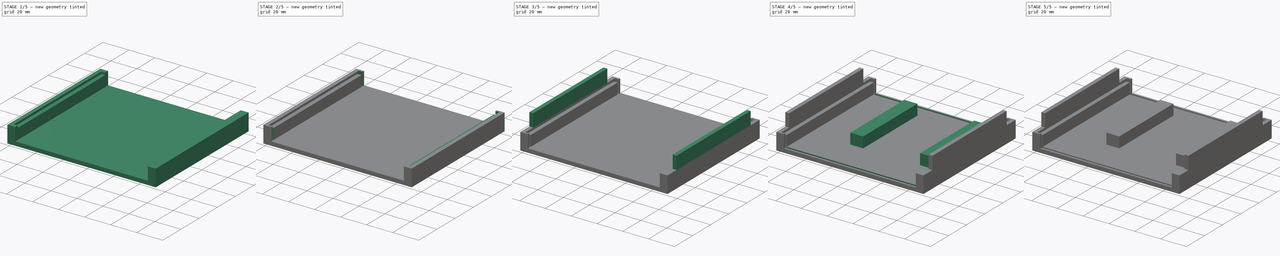
[diagram: build sequence overview — one tinted view per stage of 5, left to right]
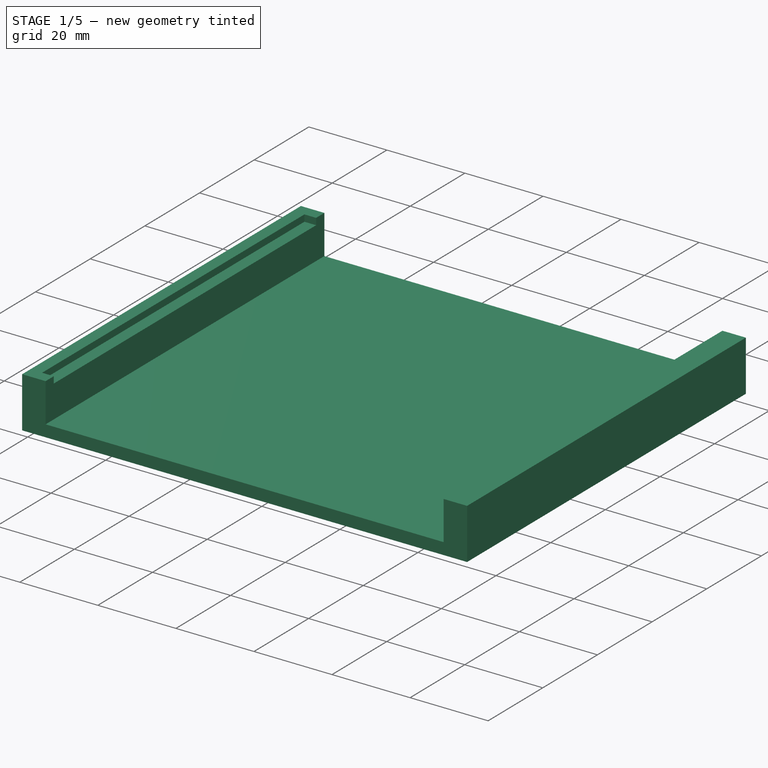
[diagram: stage 1 of 5 — iso view after this stage's code; geometry added in this stage tinted green]
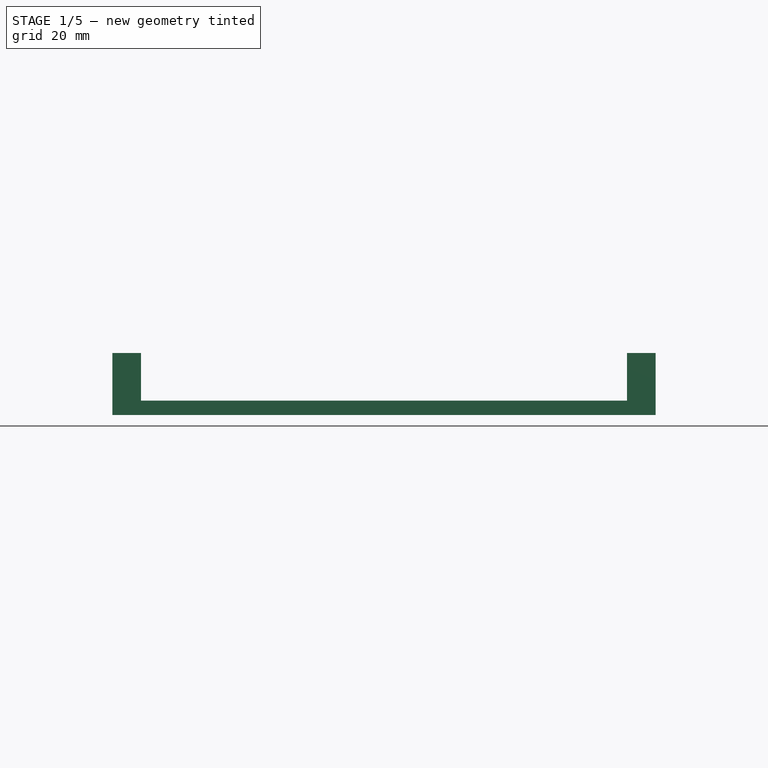
[diagram: stage 1 of 5 — front view after this stage's code; geometry added in this stage tinted green]
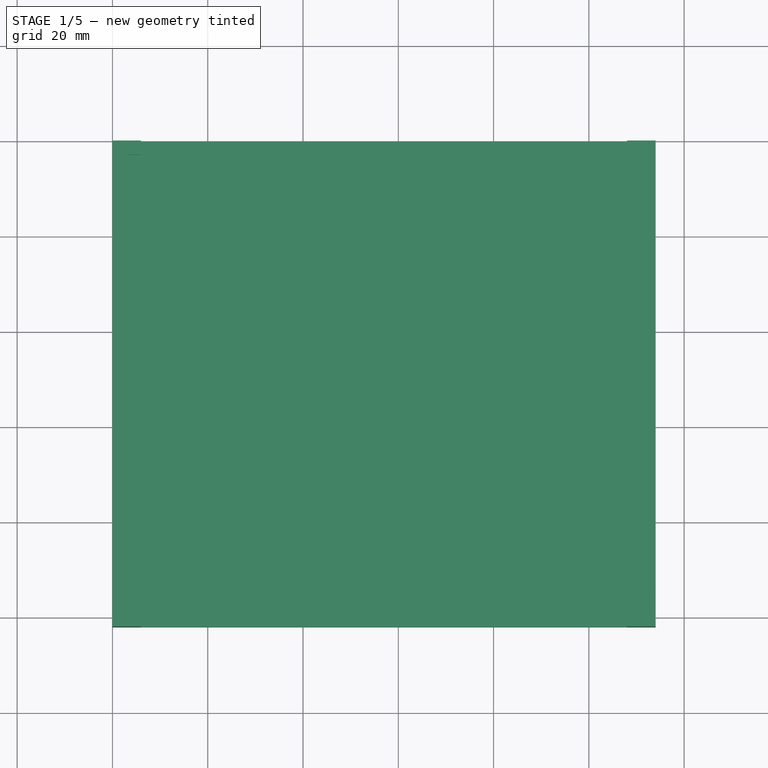
[diagram: stage 1 of 5 — top view after this stage's code; geometry added in this stage tinted green]
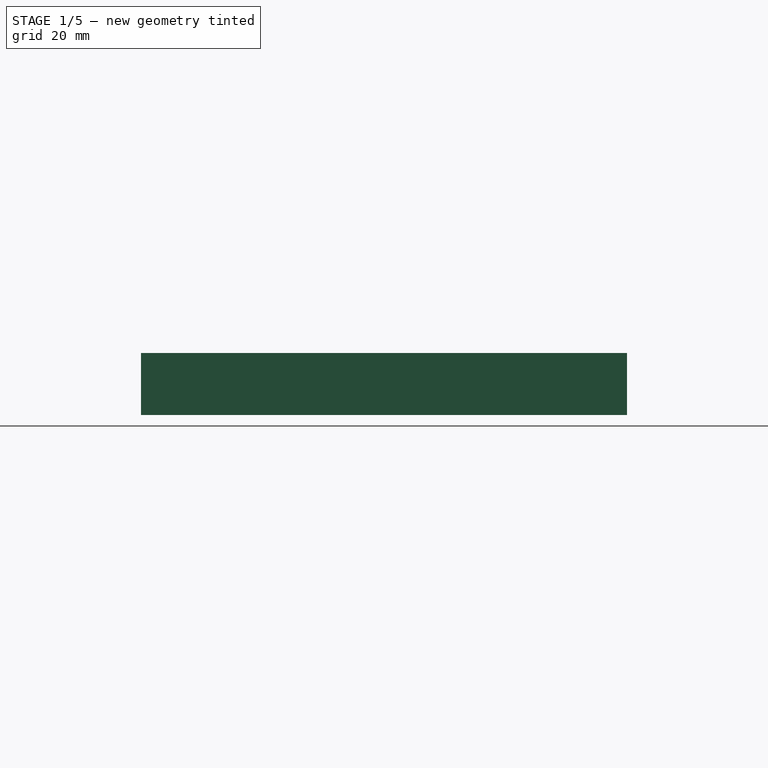
[diagram: stage 1 of 5 — right view after this stage's code; geometry added in this stage tinted green]
FCSTD DOCUMENT  (FreeCAD 0.21R33771 (Git))
Label: PP113_case_bottom
License: All rights reserved
LicenseURL: http://en.wikipedia.org/wiki/All_rights_reserved
objects: Sketcher::SketchObject×20, PartDesign::Pocket×12, PartDesign::Pad×7, PartDesign::Body×1
note: 59 computed .brp shape members not serialized (recipe doc carries the construction recipe); baked Part::Feature solids carry a one-line shape summary decoded from their .brp

FEATURE [Sketcher::SketchObject] Sketch
  FullyConstrained = true
  MapMode = 5
  Support = -> [XY_Plane]
  sketch-geometry (4):
    g0: LineSegment StartX=0 StartY=0 StartZ=0 EndX=114 EndY=0 EndZ=0
    g1: LineSegment StartX=114 StartY=0 StartZ=0 EndX=114 EndY=-102 EndZ=0
    g2: LineSegment StartX=114 StartY=-102 StartZ=0 EndX=0 EndY=-102 EndZ=0
    g3: LineSegment StartX=0 StartY=-102 StartZ=0 EndX=0 EndY=0 EndZ=0
  constraints (11):
    c: Coincident(g0,g1)
    c: Coincident(g1,g2)
    c: Coincident(g2,g3)
    c: Coincident(g3,g0)
    c: Horizontal(g0)
    c: Horizontal(g2)
    c: Vertical(g1)
    c: Vertical(g3)
    c: Distance(g0) = 114
    c: Distance(g1) = 102
    c: Coincident(g0,g-1)
FEATURE [PartDesign::Pad] Pad
  Direction = (0,0,1)
  Length = 3
  Length2 = 10
  Profile = -> Sketch
  ReferenceAxis = -> Sketch [N_Axis]
  Type = 0
FEATURE [Sketcher::SketchObject] Sketch001
  FullyConstrained = true
  MapMode = 5
  Placement = pos=(0,0,3) rot=(0,0,1;0rad)
  Support = -> [Pad]
  sketch-geometry (4):
    g0: LineSegment StartX=0 StartY=0 StartZ=0 EndX=6 EndY=0 EndZ=0
    g1: LineSegment StartX=6 StartY=0 StartZ=0 EndX=6 EndY=-102 EndZ=0
    g2: LineSegment StartX=6 StartY=-102 StartZ=0 EndX=0 EndY=-102 EndZ=0
    g3: LineSegment StartX=0 StartY=-102 StartZ=0 EndX=0 EndY=0 EndZ=0
  constraints (11):
    c: Coincident(g0,g1)
    c: Coincident(g1,g2)
    c: Coincident(g2,g3)
    c: Coincident(g3,g0)
    c: Horizontal(g0)
    c: Horizontal(g2)
    c: Vertical(g1)
    c: Vertical(g3)
    c: Coincident(g0,g-1)
    c: Distance(g0) = 6
    c: Distance(g1) = 102
FEATURE [PartDesign::Pad] Pad001
  BaseFeature = -> Pad
  Direction = (0,0,1)
  Length = 10
  Length2 = 10
  Profile = -> Sketch001
  ReferenceAxis = -> Sketch001 [N_Axis]
  Type = 0
FEATURE [Sketcher::SketchObject] Sketch002
  FullyConstrained = true
  MapMode = 5
  Placement = pos=(0,0,13) rot=(0,0,1;0rad)
  Support = -> [Pad001]
  sketch-geometry (5):
    g0: GeomPoint X=3 Y=-3 Z=0
    g1: LineSegment StartX=3 StartY=-3 StartZ=0 EndX=6 EndY=-3 EndZ=0
    g2: LineSegment StartX=6 StartY=-3 StartZ=0 EndX=6 EndY=-99 EndZ=0
    g3: LineSegment StartX=6 StartY=-99 StartZ=0 EndX=3 EndY=-99 EndZ=0
    g4: LineSegment StartX=3 StartY=-99 StartZ=0 EndX=3 EndY=-3 EndZ=0
  constraints (13):
    c: DistanceX(g0) = 3
    c: DistanceY(g0) = -3
    c: Coincident(g1,g2)
    c: Coincident(g2,g3)
    c: Coincident(g3,g4)
    c: Coincident(g4,g1)
    c: Horizontal(g1)
    c: Horizontal(g3)
    c: Vertical(g2)
    c: Vertical(g4)
    c: Coincident(g1,g0)
    c: Distance(g1) = 3
    c: Distance(g2) = 96
FEATURE [PartDesign::Pocket] Pocket
  BaseFeature = -> Pad001
  Direction = (0,0,-1)
  Length = 1.7
  Length2 = 5
  Profile = -> Sketch002
  ReferenceAxis = -> Sketch002 [N_Axis]
  Type = 0
FEATURE [Sketcher::SketchObject] Sketch003
  FullyConstrained = true
  MapMode = 5
  Placement = pos=(0,0,3) rot=(0,0,1;0rad)
  Support = -> [Pocket]
  sketch-geometry (5):
    g0: GeomPoint X=114 Y=0 Z=0
    g1: LineSegment StartX=114 StartY=0 StartZ=0 EndX=108 EndY=0 EndZ=0
    g2: LineSegment StartX=108 StartY=0 StartZ=0 EndX=108 EndY=-102 EndZ=0
    g3: LineSegment StartX=108 StartY=-102 StartZ=0 EndX=114 EndY=-102 EndZ=0
    g4: LineSegment StartX=114 StartY=-102 StartZ=0 EndX=114 EndY=0 EndZ=0
  constraints (13):
    c: DistanceY(g0) = 0
    c: DistanceX(g0) = 114
    c: Coincident(g1,g2)
    c: Coincident(g2,g3)
    c: Coincident(g3,g4)
    c: Coincident(g4,g1)
    c: Horizontal(g1)
    c: Horizontal(g3)
    c: Vertical(g2)
    c: Vertical(g4)
    c: Coincident(g1,g0)
    c: Distance(g2) = 102
    c: Distance(g1) = 6
FEATURE [PartDesign::Pad] Pad002
  BaseFeature = -> Pocket
  Direction = (0,0,1)
  Length = 10
  Length2 = 10
  Profile = -> Sketch003
  ReferenceAxis = -> Sketch003 [N_Axis]
  Type = 0
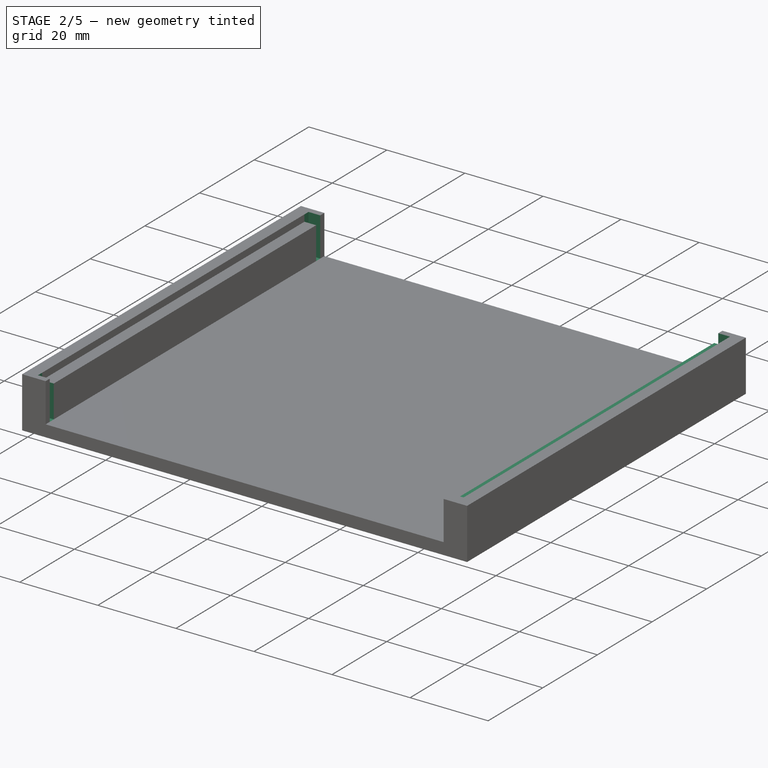
[diagram: stage 2 of 5 — iso view after this stage's code; geometry added in this stage tinted green]
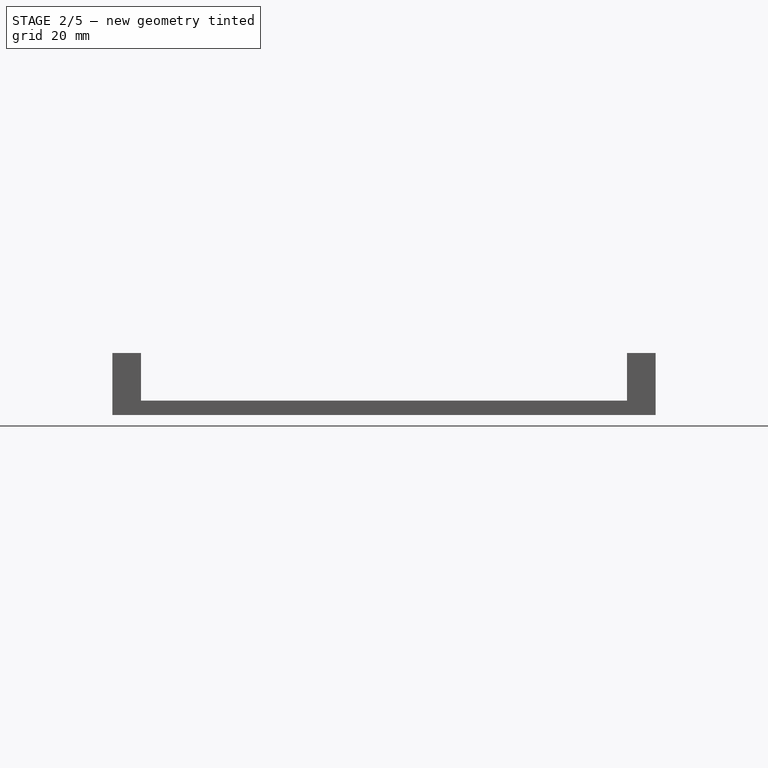
[diagram: stage 2 of 5 — front view after this stage's code; geometry added in this stage tinted green]
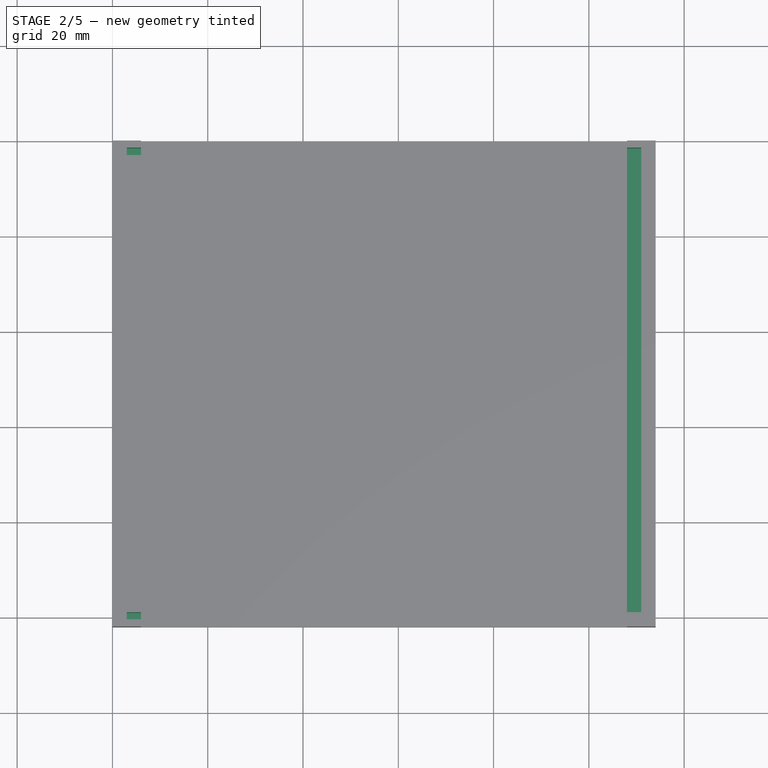
[diagram: stage 2 of 5 — top view after this stage's code; geometry added in this stage tinted green]
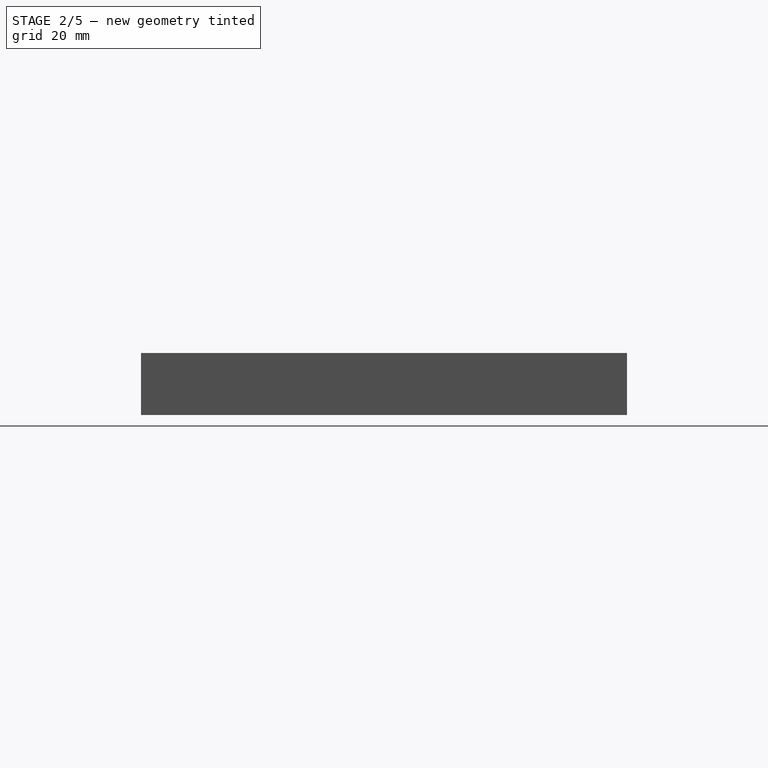
[diagram: stage 2 of 5 — right view after this stage's code; geometry added in this stage tinted green]
FEATURE [Sketcher::SketchObject] Sketch004
  FullyConstrained = true
  MapMode = 5
  Placement = pos=(0,0,13) rot=(0,0,1;0rad)
  Support = -> [Pad002]
  sketch-geometry (5):
    g0: GeomPoint X=111 Y=-3 Z=0
    g1: LineSegment StartX=111 StartY=-3 StartZ=0 EndX=108 EndY=-3 EndZ=0
    g2: LineSegment StartX=108 StartY=-3 StartZ=0 EndX=108 EndY=-99 EndZ=0
    g3: LineSegment StartX=108 StartY=-99 StartZ=0 EndX=111 EndY=-99 EndZ=0
    g4: LineSegment StartX=111 StartY=-99 StartZ=0 EndX=111 EndY=-3 EndZ=0
  constraints (13):
    c: DistanceX(g0) = 111
    c: DistanceY(g0) = -3
    c: Coincident(g1,g2)
    c: Coincident(g2,g3)
    c: Coincident(g3,g4)
    c: Coincident(g4,g1)
    c: Horizontal(g1)
    c: Horizontal(g3)
    c: Vertical(g2)
    c: Vertical(g4)
    c: Coincident(g1,g0)
    c: Distance(g1) = 3
    c: Distance(g2) = 96
FEATURE [PartDesign::Pocket] Pocket001
  BaseFeature = -> Pad002
  Direction = (0,0,-1)
  Length = 1.7
  Length2 = 5
  Profile = -> Sketch004
  ReferenceAxis = -> Sketch004 [N_Axis]
  Type = 0
FEATURE [Sketcher::SketchObject] Sketch005
  FullyConstrained = true
  MapMode = 5
  Placement = pos=(6,0,0) rot=(0.57735,0.57735,0.57735;2.0944rad)
  Support = -> [Pocket001]
FEATURE [Sketcher::SketchObject] Sketch006
  FullyConstrained = true
  MapMode = 5
  Placement = pos=(6,0,0) rot=(0.57735,0.57735,0.57735;2.0944rad)
  Support = -> [Pocket001]
  sketch-geometry (5):
    g0: GeomPoint X=-3 Y=3 Z=0
    g1: LineSegment StartX=-3 StartY=3 StartZ=0 EndX=-1.5 EndY=3 EndZ=0
    g2: LineSegment StartX=-1.5 StartY=3 StartZ=0 EndX=-1.5 EndY=13 EndZ=0
    g3: LineSegment StartX=-1.5 StartY=13 StartZ=0 EndX=-3 EndY=13 EndZ=0
    g4: LineSegment StartX=-3 StartY=13 StartZ=0 EndX=-3 EndY=3 EndZ=0
  constraints (13):
    c: DistanceX(g0) = -3
    c: DistanceY(g0) = 3
    c: Coincident(g1,g2)
    c: Coincident(g2,g3)
    c: Coincident(g3,g4)
    c: Coincident(g4,g1)
    c: Horizontal(g1)
    c: Horizontal(g3)
    c: Vertical(g2)
    c: Vertical(g4)
    c: Coincident(g1,g0)
    c: Distance(g2) = 10
    c: Distance(g3) = 1.5
FEATURE [PartDesign::Pocket] Pocket002
  BaseFeature = -> Pocket001
  Direction = (-1,0,0)
  Length = 3
  Length2 = 5
  Profile = -> Sketch006
  ReferenceAxis = -> Sketch006 [N_Axis]
  Type = 0
FEATURE [Sketcher::SketchObject] Sketch007
  FullyConstrained = true
  MapMode = 5
  Placement = pos=(6,0,0) rot=(0.57735,0.57735,0.57735;2.0944rad)
  Support = -> [Pocket002]
  sketch-geometry (5):
    g0: GeomPoint X=-99 Y=3 Z=0
    g1: LineSegment StartX=-99 StartY=3 StartZ=0 EndX=-100.5 EndY=3 EndZ=0
    g2: LineSegment StartX=-100.5 StartY=3 StartZ=0 EndX=-100.5 EndY=13 EndZ=0
    g3: LineSegment StartX=-100.5 StartY=13 StartZ=0 EndX=-99 EndY=13 EndZ=0
    g4: LineSegment StartX=-99 StartY=13 StartZ=0 EndX=-99 EndY=3 EndZ=0
  constraints (13):
    c: DistanceY(g0) = 3
    c: DistanceX(g0) = -99
    c: Coincident(g1,g2)
    c: Coincident(g2,g3)
    c: Coincident(g3,g4)
    c: Coincident(g4,g1)
    c: Horizontal(g1)
    c: Horizontal(g3)
    c: Vertical(g2)
    c: Vertical(g4)
    c: Coincident(g1,g0)
    c: DistanceY(g4,g4) = 10
    c: Distance(g3) = 1.5
FEATURE [PartDesign::Pocket] Pocket003
  BaseFeature = -> Pocket002
  Direction = (-1,0,0)
  Length = 3
  Length2 = 5
  Profile = -> Sketch007
  ReferenceAxis = -> Sketch007 [N_Axis]
  Type = 0
FEATURE [Sketcher::SketchObject] Sketch008
  FullyConstrained = true
  MapMode = 5
  Placement = pos=(108,0,0) rot=(0.57735,-0.57735,-0.57735;2.0944rad)
  Support = -> [Pocket003]
  sketch-geometry (5):
    g0: GeomPoint X=3 Y=3 Z=0
    g1: LineSegment StartX=3 StartY=3 StartZ=0 EndX=1.5 EndY=3 EndZ=0
    g2: LineSegment StartX=1.5 StartY=3 StartZ=0 EndX=1.5 EndY=13 EndZ=0
    g3: LineSegment StartX=1.5 StartY=13 StartZ=0 EndX=3 EndY=13 EndZ=0
    g4: LineSegment StartX=3 StartY=13 StartZ=0 EndX=3 EndY=3 EndZ=0
  constraints (13):
    c: DistanceY(g0) = 3
    c: DistanceX(g0) = 3
    c: Coincident(g1,g2)
    c: Coincident(g2,g3)
    c: Coincident(g3,g4)
    c: Coincident(g4,g1)
    c: Horizontal(g1)
    c: Horizontal(g3)
    c: Vertical(g2)
    c: Vertical(g4)
    c: Coincident(g1,g0)
    c: Distance(g4) = 10
    c: Distance(g3) = 1.5
FEATURE [PartDesign::Pocket] Pocket004
  BaseFeature = -> Pocket003
  Direction = (1,0,0)
  Length = 3
  Length2 = 5
  Profile = -> Sketch008
  ReferenceAxis = -> Sketch008 [N_Axis]
  Type = 0
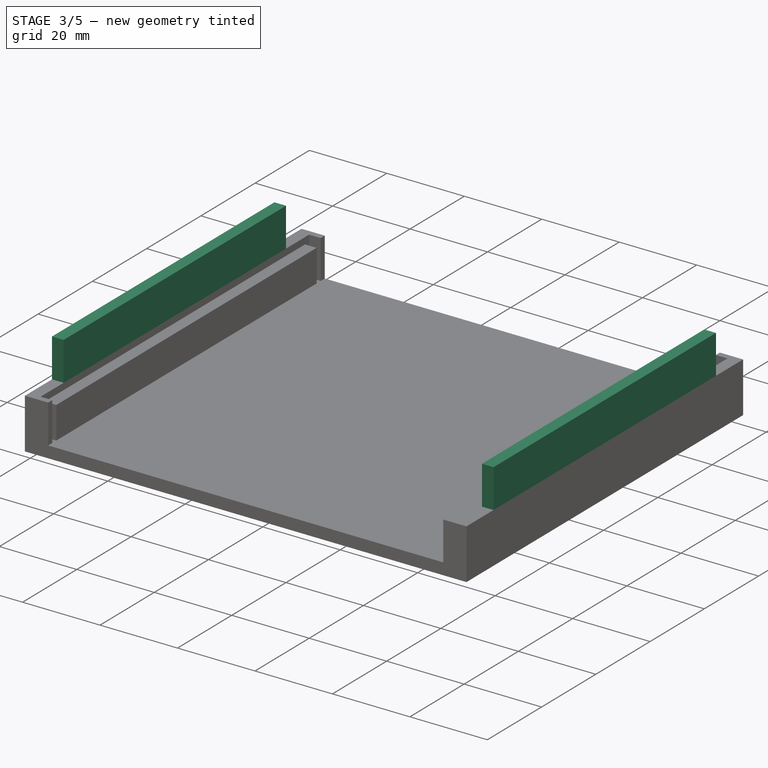
[diagram: stage 3 of 5 — iso view after this stage's code; geometry added in this stage tinted green]
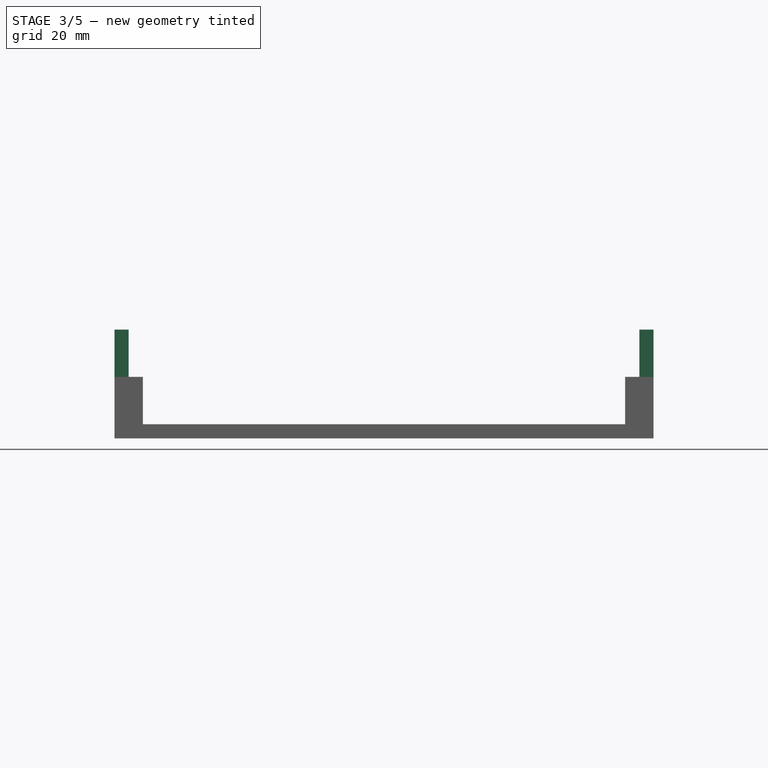
[diagram: stage 3 of 5 — front view after this stage's code; geometry added in this stage tinted green]
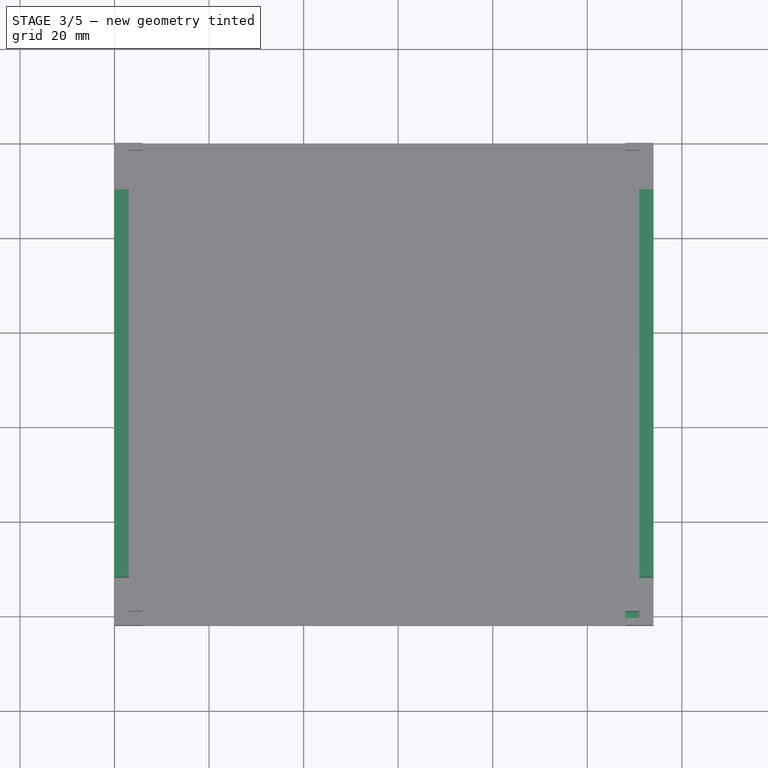
[diagram: stage 3 of 5 — top view after this stage's code; geometry added in this stage tinted green]
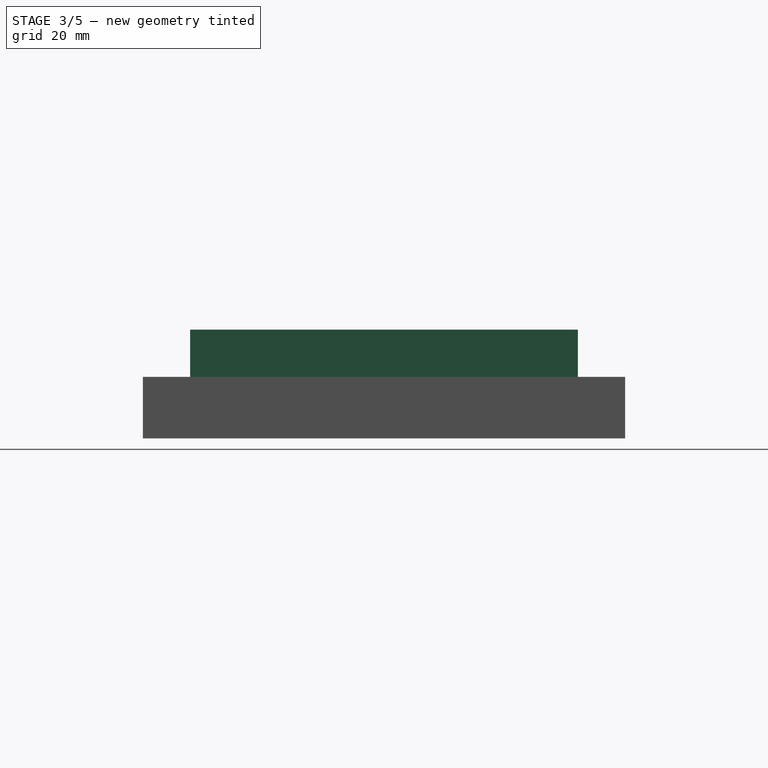
[diagram: stage 3 of 5 — right view after this stage's code; geometry added in this stage tinted green]
FEATURE [Sketcher::SketchObject] Sketch009
  FullyConstrained = true
  MapMode = 5
  Placement = pos=(108,0,0) rot=(0.57735,-0.57735,-0.57735;2.0944rad)
  Support = -> [Pocket004]
  sketch-geometry (5):
    g0: GeomPoint X=99 Y=3 Z=0
    g1: LineSegment StartX=99 StartY=3 StartZ=0 EndX=100.5 EndY=3 EndZ=0
    g2: LineSegment StartX=100.5 StartY=3 StartZ=0 EndX=100.5 EndY=13 EndZ=0
    g3: LineSegment StartX=100.5 StartY=13 StartZ=0 EndX=99 EndY=13 EndZ=0
    g4: LineSegment StartX=99 StartY=13 StartZ=0 EndX=99 EndY=3 EndZ=0
  constraints (13):
    c: DistanceY(g0) = 3
    c: DistanceX(g0) = 99
    c: Coincident(g1,g2)
    c: Coincident(g2,g3)
    c: Coincident(g3,g4)
    c: Coincident(g4,g1)
    c: Horizontal(g1)
    c: Horizontal(g3)
    c: Vertical(g2)
    c: Vertical(g4)
    c: Coincident(g1,g0)
    c: Distance(g2) = 10
    c: Distance(g1) = 1.5
FEATURE [PartDesign::Pocket] Pocket005
  BaseFeature = -> Pocket004
  Direction = (1,0,0)
  Length = 3
  Length2 = 5
  Profile = -> Sketch009
  ReferenceAxis = -> Sketch009 [N_Axis]
  Type = 0
FEATURE [Sketcher::SketchObject] Sketch010
  FullyConstrained = true
  MapMode = 5
  Placement = pos=(0,0,13) rot=(0,0,1;0rad)
  Support = -> [Pocket005]
  sketch-geometry (5):
    g0: GeomPoint X=0 Y=-10 Z=0
    g1: LineSegment StartX=0 StartY=-10 StartZ=0 EndX=3 EndY=-10 EndZ=0
    g2: LineSegment StartX=3 StartY=-10 StartZ=0 EndX=3 EndY=-92 EndZ=0
    g3: LineSegment StartX=3 StartY=-92 StartZ=0 EndX=0 EndY=-92 EndZ=0
    g4: LineSegment StartX=0 StartY=-92 StartZ=0 EndX=0 EndY=-10 EndZ=0
  constraints (13):
    c: DistanceX(g0) = 0
    c: DistanceY(g0) = -10
    c: Coincident(g1,g2)
    c: Coincident(g2,g3)
    c: Coincident(g3,g4)
    c: Coincident(g4,g1)
    c: Horizontal(g1)
    c: Horizontal(g3)
    c: Vertical(g2)
    c: Vertical(g4)
    c: Coincident(g1,g0)
    c: Distance(g3) = 3
    c: Distance(g2) = 82
FEATURE [PartDesign::Pad] Pad003
  BaseFeature = -> Pocket005
  Direction = (0,0,1)
  Length = 10
  Length2 = 10
  Profile = -> Sketch010
  ReferenceAxis = -> Sketch010 [N_Axis]
  Type = 0
FEATURE [Sketcher::SketchObject] Sketch011
  FullyConstrained = true
  MapMode = 5
  Placement = pos=(0,0,13) rot=(0,0,1;0rad)
  Support = -> [Pad003]
  sketch-geometry (5):
    g0: GeomPoint X=114 Y=-10 Z=0
    g1: LineSegment StartX=114 StartY=-10 StartZ=0 EndX=111 EndY=-10 EndZ=0
    g2: LineSegment StartX=111 StartY=-10 StartZ=0 EndX=111 EndY=-92 EndZ=0
    g3: LineSegment StartX=111 StartY=-92 StartZ=0 EndX=114 EndY=-92 EndZ=0
    g4: LineSegment StartX=114 StartY=-92 StartZ=0 EndX=114 EndY=-10 EndZ=0
  constraints (13):
    c: DistanceX(g0) = 114
    c: DistanceY(g0) = -10
    c: Coincident(g1,g2)
    c: Coincident(g2,g3)
    c: Coincident(g3,g4)
    c: Coincident(g4,g1)
    c: Horizontal(g1)
    c: Horizontal(g3)
    c: Vertical(g2)
    c: Vertical(g4)
    c: Coincident(g1,g0)
    c: Distance(g3) = 3
    c: Distance(g2) = 82
FEATURE [PartDesign::Pad] Pad004
  BaseFeature = -> Pad003
  Direction = (0,0,1)
  Length = 10
  Length2 = 10
  Profile = -> Sketch011
  ReferenceAxis = -> Sketch011 [N_Axis]
  Type = 0
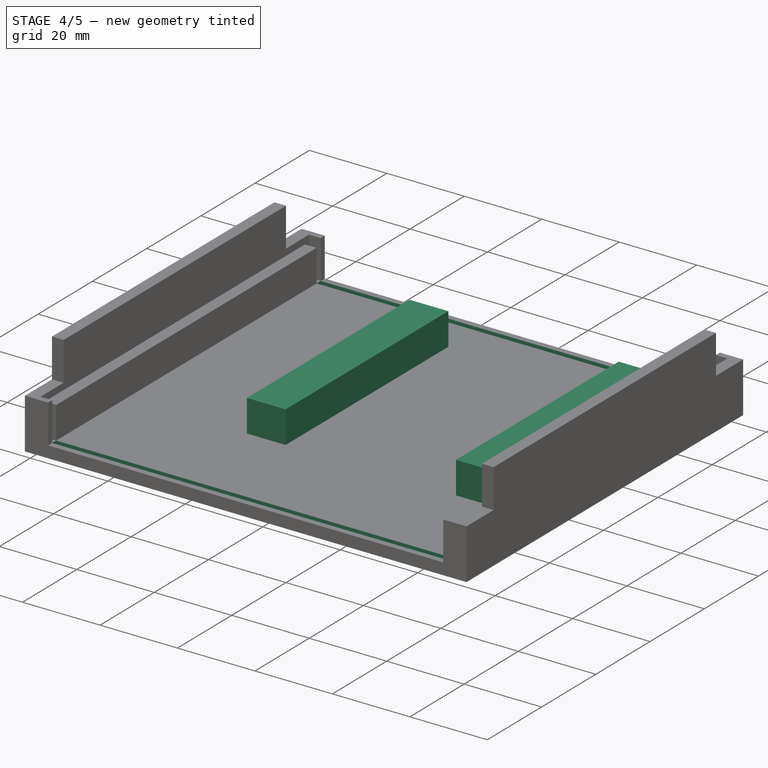
[diagram: stage 4 of 5 — iso view after this stage's code; geometry added in this stage tinted green]
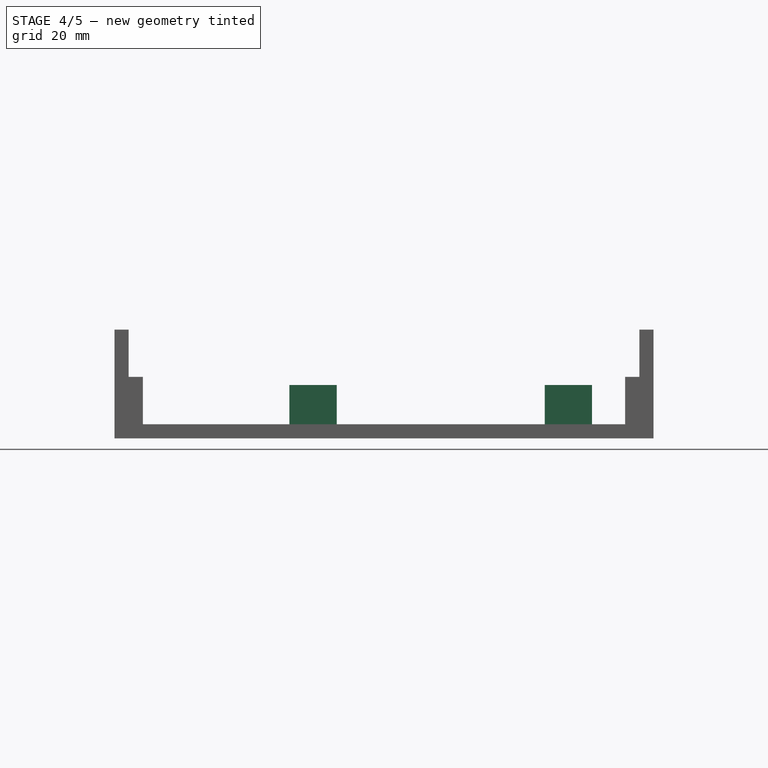
[diagram: stage 4 of 5 — front view after this stage's code; geometry added in this stage tinted green]
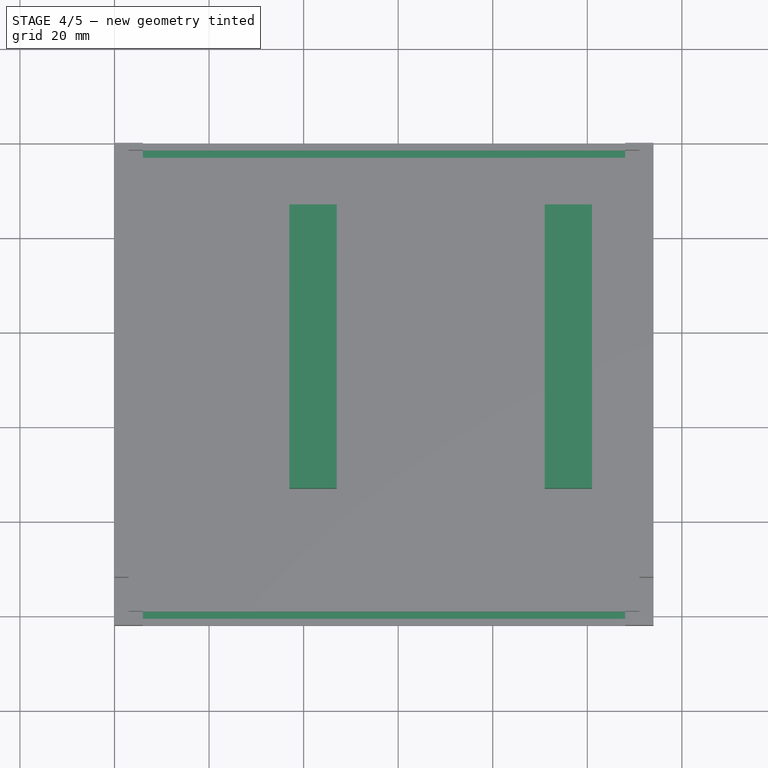
[diagram: stage 4 of 5 — top view after this stage's code; geometry added in this stage tinted green]
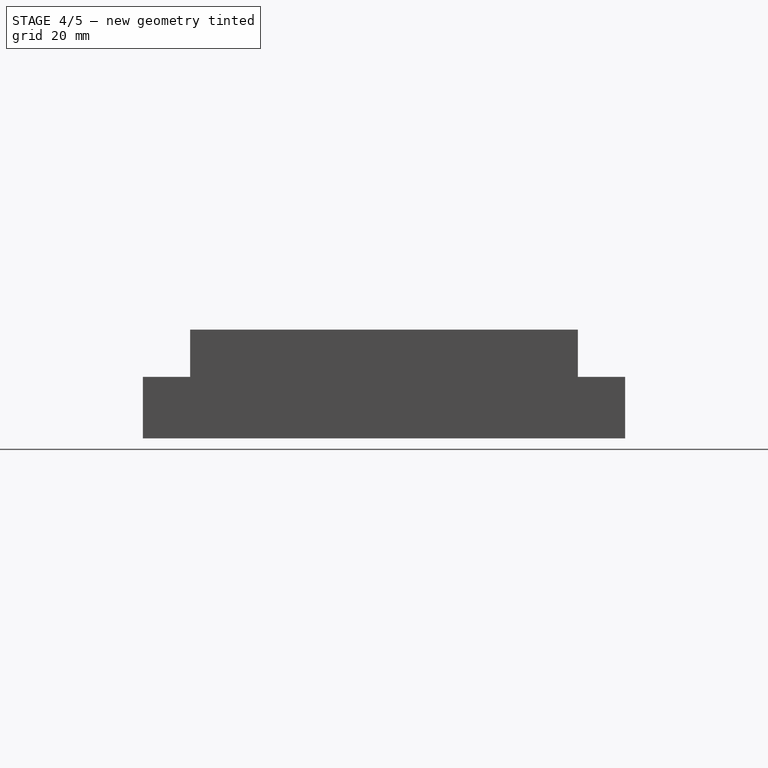
[diagram: stage 4 of 5 — right view after this stage's code; geometry added in this stage tinted green]
FEATURE [Sketcher::SketchObject] Sketch012
  FullyConstrained = true
  MapMode = 5
  Placement = pos=(0,0,3) rot=(0,0,1;0rad)
  Support = -> [Pad004]
  sketch-geometry (5):
    g0: GeomPoint X=101 Y=-13 Z=0
    g1: LineSegment StartX=101 StartY=-13 StartZ=0 EndX=91 EndY=-13 EndZ=0
    g2: LineSegment StartX=91 StartY=-13 StartZ=0 EndX=91 EndY=-73 EndZ=0
    g3: LineSegment StartX=91 StartY=-73 StartZ=0 EndX=101 EndY=-73 EndZ=0
    g4: LineSegment StartX=101 StartY=-73 StartZ=0 EndX=101 EndY=-13 EndZ=0
  constraints (13):
    c: DistanceX(g0) = 101
    c: DistanceY(g0) = -13
    c: Coincident(g1,g2)
    c: Coincident(g2,g3)
    c: Coincident(g3,g4)
    c: Coincident(g4,g1)
    c: Horizontal(g1)
    c: Horizontal(g3)
    c: Vertical(g2)
    c: Vertical(g4)
    c: Coincident(g1,g0)
    c: Distance(g1) = 10
    c: Distance(g2) = 60
FEATURE [PartDesign::Pad] Pad005
  BaseFeature = -> Pad004
  Direction = (0,0,1)
  Length = 8.3
  Length2 = 10
  Profile = -> Sketch012
  ReferenceAxis = -> Sketch012 [N_Axis]
  Type = 0
FEATURE [Sketcher::SketchObject] Sketch013
  FullyConstrained = true
  MapMode = 5
  Placement = pos=(0,0,3) rot=(0,0,1;0rad)
  Support = -> [Pad005]
  sketch-geometry (5):
    g0: GeomPoint X=47 Y=-13 Z=0
    g1: LineSegment StartX=47 StartY=-13 StartZ=0 EndX=37 EndY=-13 EndZ=0
    g2: LineSegment StartX=37 StartY=-13 StartZ=0 EndX=37 EndY=-73 EndZ=0
    g3: LineSegment StartX=37 StartY=-73 StartZ=0 EndX=47 EndY=-73 EndZ=0
    g4: LineSegment StartX=47 StartY=-73 StartZ=0 EndX=47 EndY=-13 EndZ=0
  constraints (13):
    c: DistanceY(g0) = -13
    c: DistanceX(g0) = 47
    c: Coincident(g1,g2)
    c: Coincident(g2,g3)
    c: Coincident(g3,g4)
    c: Coincident(g4,g1)
    c: Horizontal(g1)
    c: Horizontal(g3)
    c: Vertical(g2)
    c: Vertical(g4)
    c: Coincident(g1,g0)
    c: Distance(g3) = 10
    c: Distance(g2) = 60
FEATURE [PartDesign::Pad] Pad006
  BaseFeature = -> Pad005
  Direction = (0,0,1)
  Length = 8.3
  Length2 = 10
  Profile = -> Sketch013
  ReferenceAxis = -> Sketch013 [N_Axis]
  Type = 0
FEATURE [Sketcher::SketchObject] Sketch014
  FullyConstrained = true
  MapMode = 5
  Placement = pos=(0,0,3) rot=(0,0,1;0rad)
  Support = -> [Pad006]
  sketch-geometry (5):
    g0: GeomPoint X=6 Y=-99 Z=0
    g1: LineSegment StartX=6 StartY=-99 StartZ=0 EndX=108 EndY=-99 EndZ=0
    g2: LineSegment StartX=108 StartY=-99 StartZ=0 EndX=108 EndY=-100.5 EndZ=0
    g3: LineSegment StartX=108 StartY=-100.5 StartZ=0 EndX=6 EndY=-100.5 EndZ=0
    g4: LineSegment StartX=6 StartY=-100.5 StartZ=0 EndX=6 EndY=-99 EndZ=0
  constraints (13):
    c: DistanceY(g0) = -99
    c: DistanceX(g0) = 6
    c: Coincident(g1,g2)
    c: Coincident(g2,g3)
    c: Coincident(g3,g4)
    c: Coincident(g4,g1)
    c: Horizontal(g1)
    c: Horizontal(g3)
    c: Vertical(g2)
    c: Vertical(g4)
    c: Coincident(g1,g0)
    c: Distance(g2) = 1.5
    c: Distance(g3) = 102
FEATURE [PartDesign::Pocket] Pocket006
  BaseFeature = -> Pad006
  Direction = (0,0,-1)
  Length = 1.5
  Length2 = 5
  Profile = -> Sketch014
  ReferenceAxis = -> Sketch014 [N_Axis]
  Type = 0
FEATURE [Sketcher::SketchObject] Sketch015
  FullyConstrained = true
  MapMode = 5
  Placement = pos=(0,0,3) rot=(0,0,1;0rad)
  Support = -> [Pocket006]
  sketch-geometry (5):
    g0: GeomPoint X=6 Y=-3 Z=0
    g1: LineSegment StartX=6 StartY=-3 StartZ=0 EndX=108 EndY=-3 EndZ=0
    g2: LineSegment StartX=108 StartY=-3 StartZ=0 EndX=108 EndY=-1.5 EndZ=0
    g3: LineSegment StartX=108 StartY=-1.5 StartZ=0 EndX=6 EndY=-1.5 EndZ=0
    g4: LineSegment StartX=6 StartY=-1.5 StartZ=0 EndX=6 EndY=-3 EndZ=0
  constraints (13):
    c: DistanceX(g0) = 6
    c: DistanceY(g0) = -3
    c: Coincident(g1,g2)
    c: Coincident(g2,g3)
    c: Coincident(g3,g4)
    c: Coincident(g4,g1)
    c: Horizontal(g1)
    c: Horizontal(g3)
    c: Vertical(g2)
    c: Vertical(g4)
    c: Coincident(g1,g0)
    c: Distance(g3) = 102
    c: Distance(g2) = 1.5
FEATURE [PartDesign::Pocket] Pocket007
  BaseFeature = -> Pocket006
  Direction = (0,0,-1)
  Length = 1.5
  Length2 = 5
  Profile = -> Sketch015
  ReferenceAxis = -> Sketch015 [N_Axis]
  Type = 0
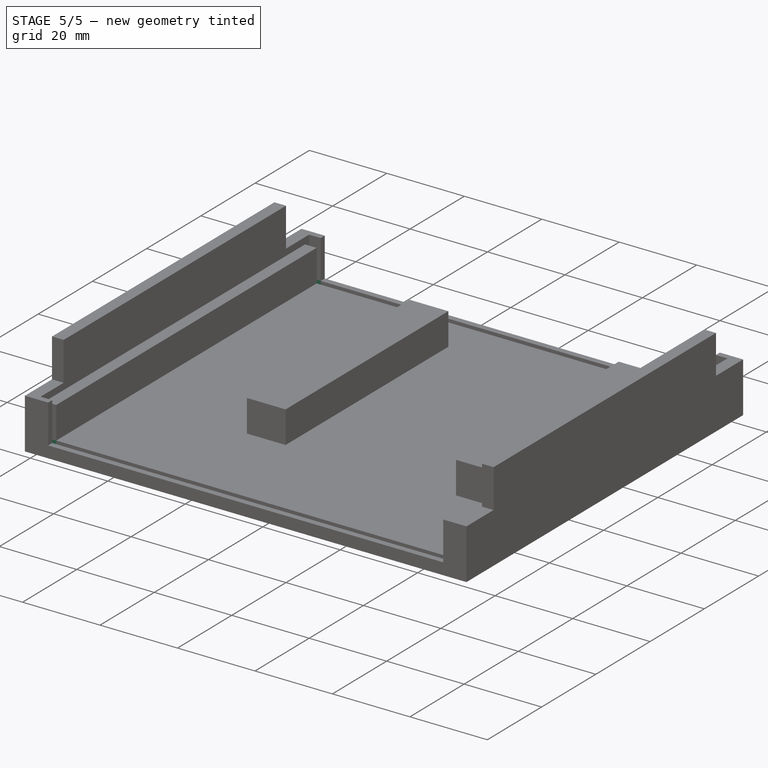
[diagram: stage 5 of 5 — iso view after this stage's code; geometry added in this stage tinted green]
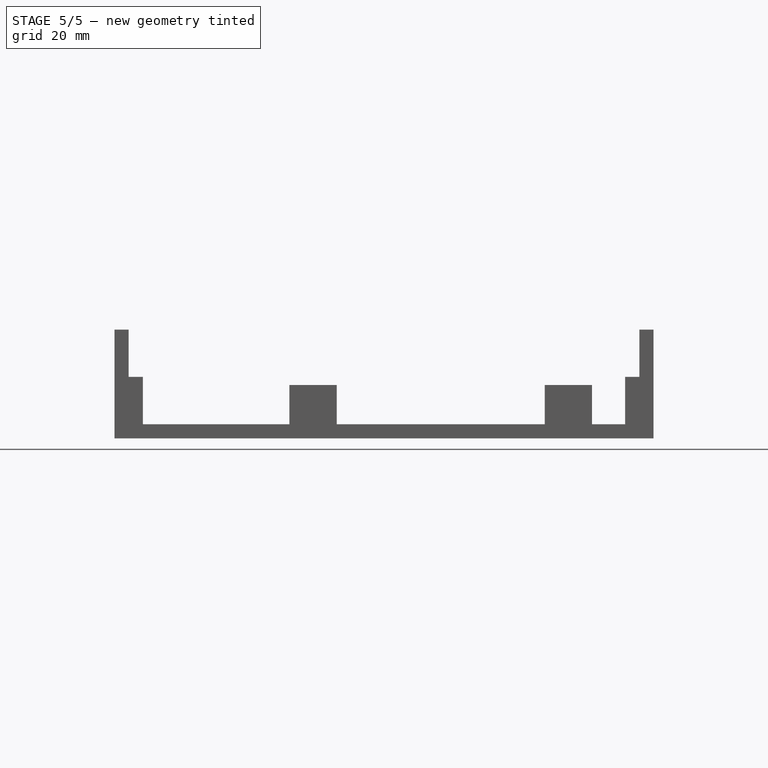
[diagram: stage 5 of 5 — front view after this stage's code; geometry added in this stage tinted green]
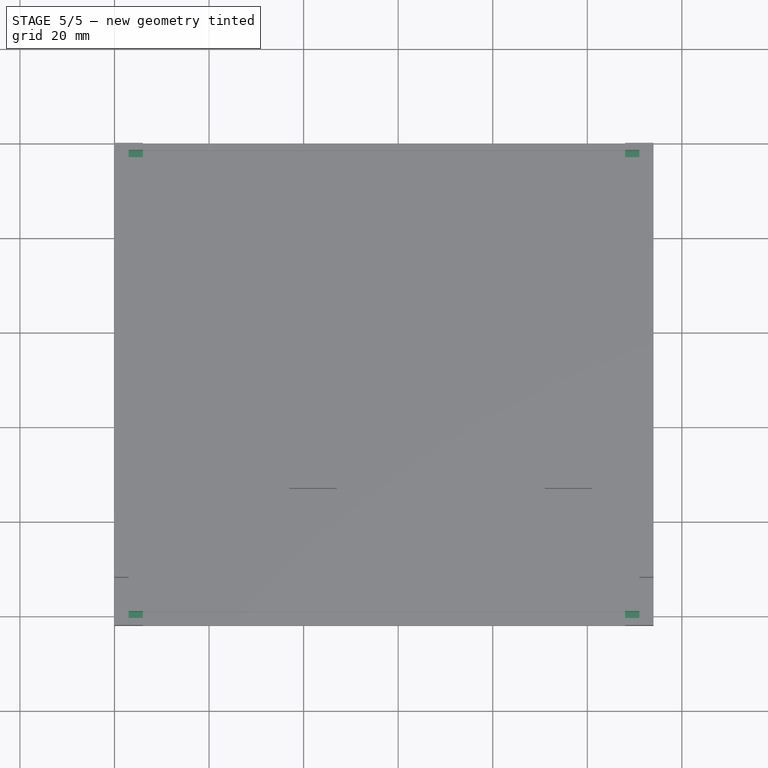
[diagram: stage 5 of 5 — top view after this stage's code; geometry added in this stage tinted green]
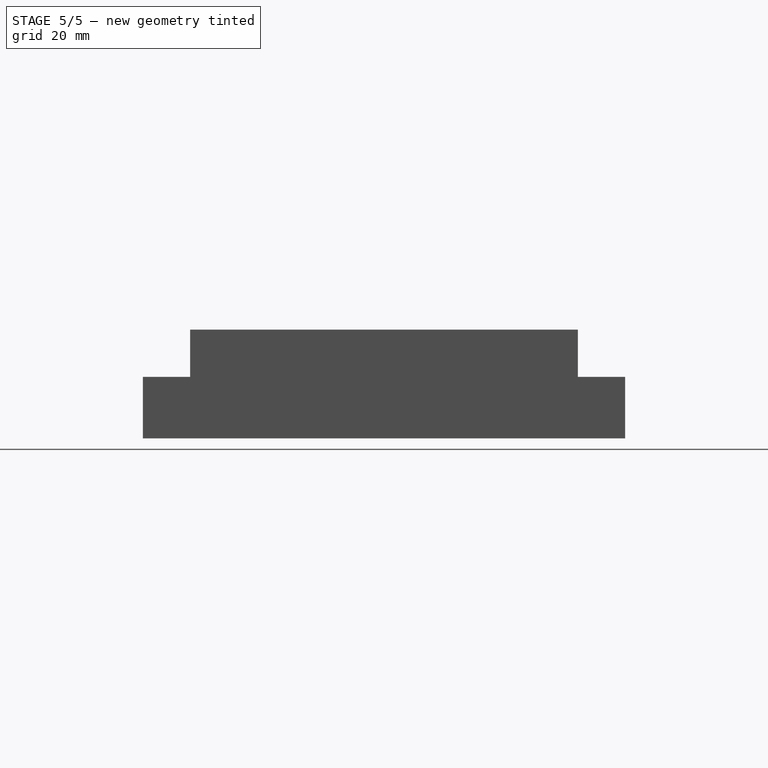
[diagram: stage 5 of 5 — right view after this stage's code; geometry added in this stage tinted green]
FEATURE [Sketcher::SketchObject] Sketch016
  FullyConstrained = true
  MapMode = 5
  Placement = pos=(0,0,3) rot=(0,0,1;0rad)
  Support = -> [Pocket007]
  sketch-geometry (5):
    g0: GeomPoint X=3 Y=-99 Z=0
    g1: LineSegment StartX=3 StartY=-99 StartZ=0 EndX=6 EndY=-99 EndZ=0
    g2: LineSegment StartX=6 StartY=-99 StartZ=0 EndX=6 EndY=-100.5 EndZ=0
    g3: LineSegment StartX=6 StartY=-100.5 StartZ=0 EndX=3 EndY=-100.5 EndZ=0
    g4: LineSegment StartX=3 StartY=-100.5 StartZ=0 EndX=3 EndY=-99 EndZ=0
  constraints (13):
    c: DistanceX(g0) = 3
    c: DistanceY(g0) = -99
    c: Coincident(g1,g2)
    c: Coincident(g2,g3)
    c: Coincident(g3,g4)
    c: Coincident(g4,g1)
    c: Horizontal(g1)
    c: Horizontal(g3)
    c: Vertical(g2)
    c: Vertical(g4)
    c: Coincident(g1,g0)
    c: Distance(g3) = 3
    c: Distance(g2) = 1.5
FEATURE [PartDesign::Pocket] Pocket008
  BaseFeature = -> Pocket007
  Direction = (0,0,-1)
  Length = 1.5
  Length2 = 5
  Profile = -> Sketch016
  ReferenceAxis = -> Sketch016 [N_Axis]
  Type = 0
FEATURE [Sketcher::SketchObject] Sketch017
  FullyConstrained = true
  MapMode = 5
  Placement = pos=(0,0,3) rot=(0,0,1;0rad)
  Support = -> [Pocket008]
  sketch-geometry (5):
    g0: GeomPoint X=3 Y=-1.5 Z=0
    g1: LineSegment StartX=3 StartY=-1.5 StartZ=0 EndX=6 EndY=-1.5 EndZ=0
    g2: LineSegment StartX=6 StartY=-1.5 StartZ=0 EndX=6 EndY=-3 EndZ=0
    g3: LineSegment StartX=6 StartY=-3 StartZ=0 EndX=3 EndY=-3 EndZ=0
    g4: LineSegment StartX=3 StartY=-3 StartZ=0 EndX=3 EndY=-1.5 EndZ=0
  constraints (13):
    c: DistanceX(g0) = 3
    c: DistanceY(g0) = -1.5
    c: Coincident(g1,g2)
    c: Coincident(g2,g3)
    c: Coincident(g3,g4)
    c: Coincident(g4,g1)
    c: Horizontal(g1)
    c: Horizontal(g3)
    c: Vertical(g2)
    c: Vertical(g4)
    c: Coincident(g1,g0)
    c: Distance(g3) = 3
    c: DistanceY(g2,g2) = 1.5
FEATURE [PartDesign::Pocket] Pocket009
  BaseFeature = -> Pocket008
  Direction = (0,0,-1)
  Length = 1.5
  Length2 = 5
  Profile = -> Sketch017
  ReferenceAxis = -> Sketch017 [N_Axis]
  Type = 0
FEATURE [Sketcher::SketchObject] Sketch018
  FullyConstrained = true
  MapMode = 5
  Placement = pos=(0,0,3) rot=(0,0,1;0rad)
  Support = -> [Pocket009]
  sketch-geometry (5):
    g0: GeomPoint X=111 Y=-99 Z=0
    g1: LineSegment StartX=111 StartY=-99 StartZ=0 EndX=108 EndY=-99 EndZ=0
    g2: LineSegment StartX=108 StartY=-99 StartZ=0 EndX=108 EndY=-100.5 EndZ=0
    g3: LineSegment StartX=108 StartY=-100.5 StartZ=0 EndX=111 EndY=-100.5 EndZ=0
    g4: LineSegment StartX=111 StartY=-100.5 StartZ=0 EndX=111 EndY=-99 EndZ=0
  constraints (13):
    c: DistanceY(g0) = -99
    c: DistanceX(g0) = 111
    c: Coincident(g1,g2)
    c: Coincident(g2,g3)
    c: Coincident(g3,g4)
    c: Coincident(g4,g1)
    c: Horizontal(g1)
    c: Horizontal(g3)
    c: Vertical(g2)
    c: Vertical(g4)
    c: Coincident(g1,g0)
    c: Distance(g3) = 3
    c: Distance(g4) = 1.5
FEATURE [PartDesign::Pocket] Pocket010
  BaseFeature = -> Pocket009
  Direction = (0,0,-1)
  Length = 1.5
  Length2 = 5
  Profile = -> Sketch018
  ReferenceAxis = -> Sketch018 [N_Axis]
  Type = 0
FEATURE [Sketcher::SketchObject] Sketch019
  FullyConstrained = true
  MapMode = 5
  Placement = pos=(0,0,3) rot=(0,0,1;0rad)
  Support = -> [Pocket010]
  sketch-geometry (5):
    g0: GeomPoint X=111 Y=-3 Z=0
    g1: LineSegment StartX=111 StartY=-3 StartZ=0 EndX=108 EndY=-3 EndZ=0
    g2: LineSegment StartX=108 StartY=-3 StartZ=0 EndX=108 EndY=-1.5 EndZ=0
    g3: LineSegment StartX=108 StartY=-1.5 StartZ=0 EndX=111 EndY=-1.5 EndZ=0
    g4: LineSegment StartX=111 StartY=-1.5 StartZ=0 EndX=111 EndY=-3 EndZ=0
  constraints (13):
    c: DistanceX(g0) = 111
    c: DistanceY(g0) = -3
    c: Coincident(g1,g2)
    c: Coincident(g2,g3)
    c: Coincident(g3,g4)
    c: Coincident(g4,g1)
    c: Horizontal(g1)
    c: Horizontal(g3)
    c: Vertical(g2)
    c: Vertical(g4)
    c: Coincident(g1,g0)
    c: Distance(g2) = 1.5
    c: Distance(g1) = 3
FEATURE [PartDesign::Pocket] Pocket011
  BaseFeature = -> Pocket010
  Direction = (0,0,-1)
  Length = 1.5
  Length2 = 5
  Profile = -> Sketch019
  ReferenceAxis = -> Sketch019 [N_Axis]
  Type = 0
FEATURE [PartDesign::Body] Body  label="Lichaam"
  Group = -> [Sketch,Pad,Sketch001,Pad001,Sketch002,Pocket,Sketch003,Pad002,Sketch004,Pocket001,Sketch005,Sketch006,Pocket002,Sketch007,Pocket003,Sketch008,Pocket004,Sketch009,Pocket005,Sketch010,Pad003,Sketch011,Pad004,Sketch012,Pad005,Sketch013,Pad006,Sketch014,Pocket006,Sketch015,Pocket007,Sketch016,Pocket008,Sketch017,Pocket009,Sketch018,Pocket010,Sketch019,Pocket011]
  Origin = -> Origin
  Tip = -> Pocket011
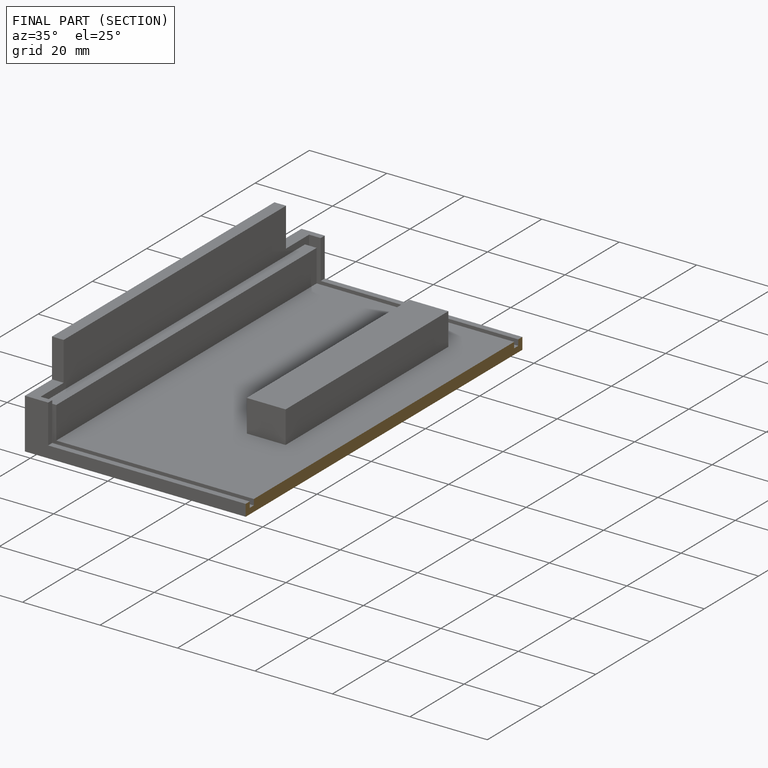
[diagram: finished part — half-section view (interior)]
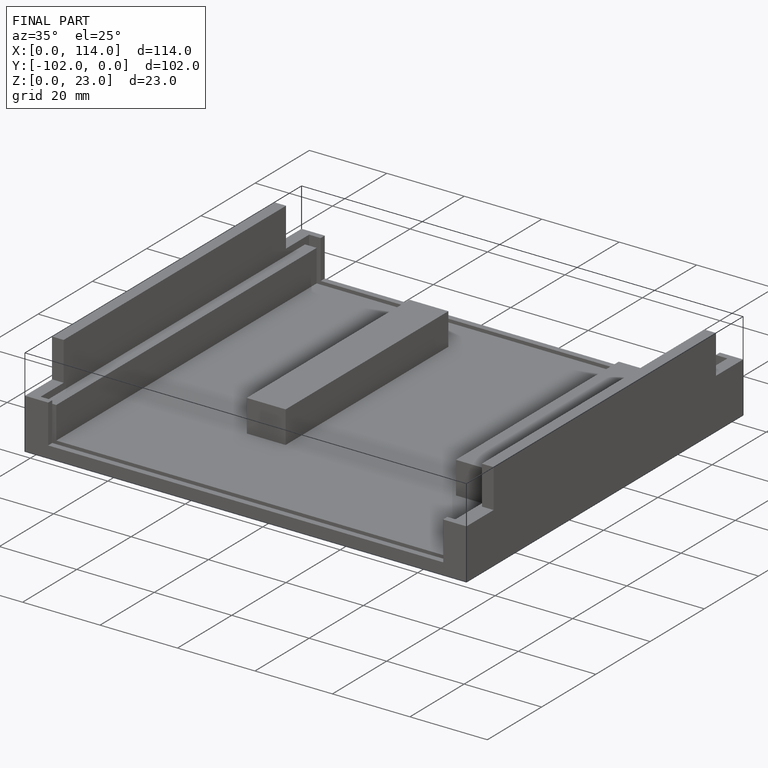
[diagram: finished part — iso view with bounding-box wireframe]
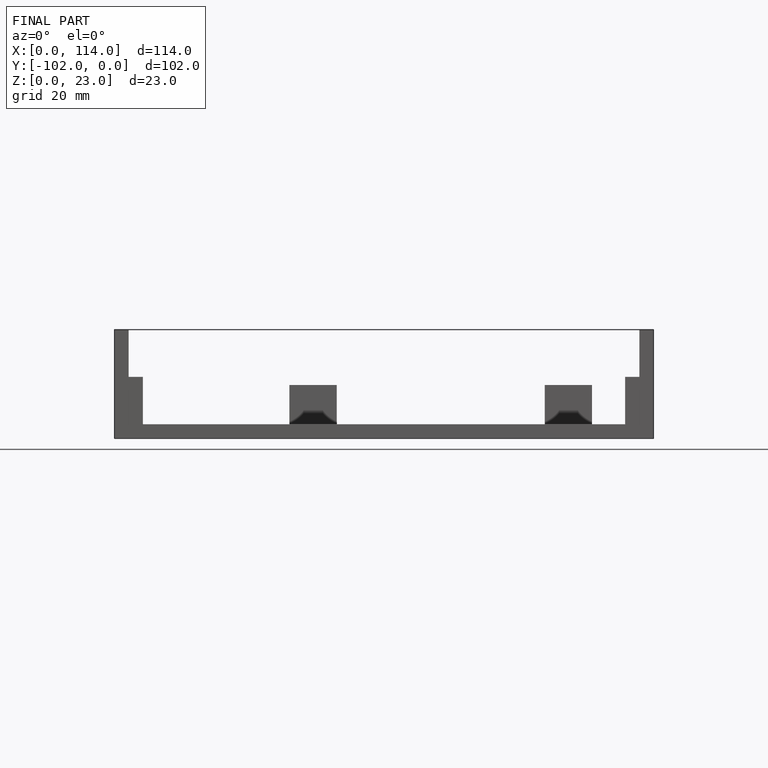
[diagram: finished part — front view with bounding-box wireframe]
